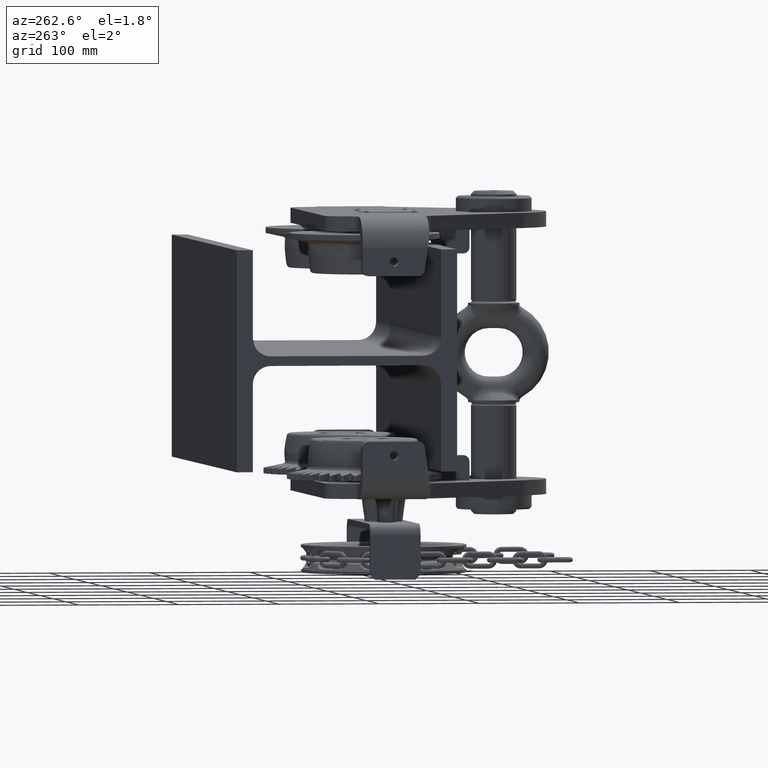
[diagram: clean part render]
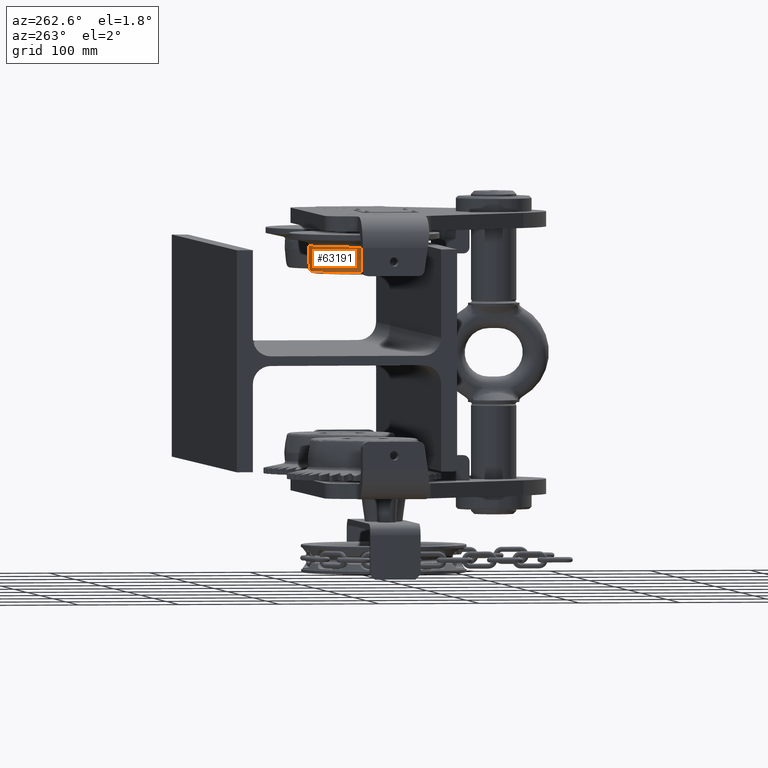
[diagram: same view with one face highlighted and labeled with its STEP entity id]
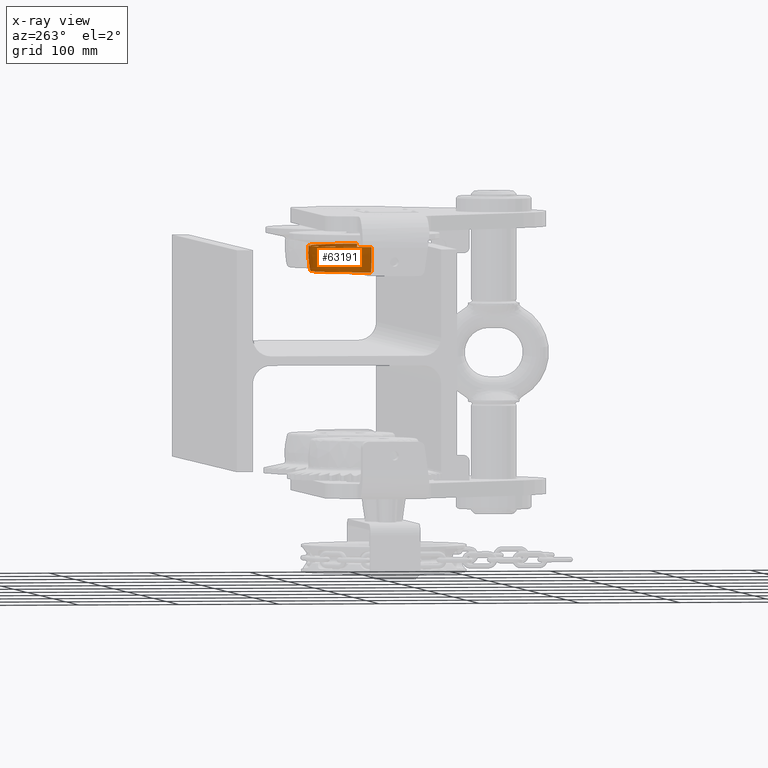
[diagram: x-ray of the same camera — body ghosted, the highlighted face saturated]
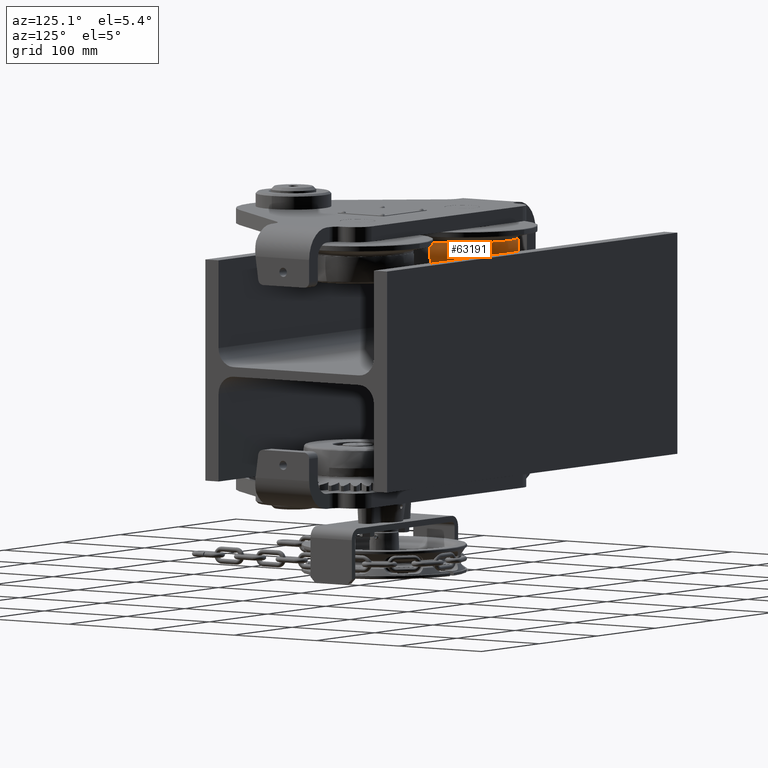
[diagram: same view with one face highlighted and labeled with its STEP entity id]
A machine part, auxiliary view. The second image highlights one B-rep face of the part: STEP entity #63191.
The next image is the same camera in x-ray: the body ghosted, the highlighted face saturated — about 6% of this face is hidden behind the body in this view.
A second angle (auxiliary view) of the same face is appended — the face is thin or edge-on in the first view.
In plain terms, the highlighted spherical surface has radius 56 mm.
Its self-contained STEP definition (entity closure, byte-faithful):
#5 = CIRCLE ( 'NONE', #113506, 55.39255850413274400 ) ;
#1073 = SPHERICAL_SURFACE ( 'NONE', #93911, 56.00000000000000700 ) ;
#1560 = AXIS2_PLACEMENT_3D ( 'NONE', #94384, #103285, #13908 ) ;
#4450 = AXIS2_PLACEMENT_3D ( 'NONE', #111683, #113215, #31867 ) ;
#4493 = ORIENTED_EDGE ( 'NONE', *, *, #40906, .T. ) ;
#7112 = CARTESIAN_POINT ( 'NONE',  ( -90.00000000000002800, -37.99999999999951000, 109.2258411342703100 ) ) ;
#8838 = EDGE_CURVE ( 'NONE', #58349, #49781, #53824, .T. ) ;
#9989 = EDGE_CURVE ( 'NONE', #73937, #58349, #32453, .T. ) ;
#11673 = CARTESIAN_POINT ( 'NONE',  ( -90.00000000000002800, -37.99999999999951000, 84.09433962264273500 ) ) ;
#12016 = DIRECTION ( 'NONE',  ( 1.000000000000000000, -3.717264591378871700E-016, 0.0000000000000000000 ) ) ;
#13301 = CIRCLE ( 'NONE', #4450, 55.39255850413274400 ) ;
#13908 = DIRECTION ( 'NONE',  ( -1.000000000000000000, 2.478176394252581600E-016, 0.0000000000000000000 ) ) ;
#18358 = CARTESIAN_POINT ( 'NONE',  ( -145.3925585041327500, -37.99999999999949600, 109.2258411342703100 ) ) ;
#18678 = VERTEX_POINT ( 'NONE', #102126 ) ;
#22401 = EDGE_CURVE ( 'NONE', #18678, #73937, #108395, .T. ) ;
#26329 = DIRECTION ( 'NONE',  ( 2.599457240876005600E-016, 1.000000000000000000, 0.0000000000000000000 ) ) ;
#29734 = EDGE_CURVE ( 'NONE', #49781, #105750, #5, .T. ) ;
#30043 = ORIENTED_EDGE ( 'NONE', *, *, #8838, .T. ) ;
#30747 = ORIENTED_EDGE ( 'NONE', *, *, #9989, .T. ) ;
#31867 = DIRECTION ( 'NONE',  ( -2.505352376308644300E-016, -1.000000000000000000, 0.0000000000000000000 ) ) ;
#32453 = CIRCLE ( 'NONE', #76243, 53.38725172927908600 ) ;
#38386 = DIRECTION ( 'NONE',  ( 4.336808689942012900E-019, -1.734723475976806700E-018, 1.000000000000000000 ) ) ;
#40906 = EDGE_CURVE ( 'NONE', #105750, #69057, #13301, .T. ) ;
#42856 = ORIENTED_EDGE ( 'NONE', *, *, #100618, .F. ) ;
#45132 = AXIS2_PLACEMENT_3D ( 'NONE', #78188, #96013, #26329 ) ;
#47720 = DIRECTION ( 'NONE',  ( -4.000204360710243800E-016, -1.000000000000000000, -1.734723475976806700E-018 ) ) ;
#49317 = CARTESIAN_POINT ( 'NONE',  ( -90.00000000000002800, -37.99999999999951000, 101.0000000000011900 ) ) ;
#49781 = VERTEX_POINT ( 'NONE', #18358 ) ;
#53824 = CIRCLE ( 'NONE', #1560, 55.99999999999999300 ) ;
#54777 = CARTESIAN_POINT ( 'NONE',  ( -90.00000000000001400, 15.38725172927958000, 84.09433962264273500 ) ) ;
#55216 = CARTESIAN_POINT ( 'NONE',  ( -143.3872517292791100, -37.99999999999949600, 84.09433962264273500 ) ) ;
#58031 = FACE_OUTER_BOUND ( 'NONE', #69302, .T. ) ;
#58204 = DIRECTION ( 'NONE',  ( -1.000000000000000000, 2.478176394252580600E-016, 0.0000000000000000000 ) ) ;
#58349 = VERTEX_POINT ( 'NONE', #55216 ) ;
#59977 = DIRECTION ( 'NONE',  ( -2.505352376308644300E-016, -1.000000000000000000, 0.0000000000000000000 ) ) ;
#63191 = ADVANCED_FACE ( 'NONE', ( #58031 ), #1073, .T. ) ;
#64280 = ORIENTED_EDGE ( 'NONE', *, *, #22401, .T. ) ;
#64509 = DIRECTION ( 'NONE',  ( 2.599457240876005600E-016, 1.000000000000000000, 0.0000000000000000000 ) ) ;
#66712 = AXIS2_PLACEMENT_3D ( 'NONE', #74246, #47720, #12016 ) ;
#69057 = VERTEX_POINT ( 'NONE', #95838 ) ;
#69302 = EDGE_LOOP ( 'NONE', ( #42856, #64280, #30747, #30043, #93919, #4493 ) ) ;
#73937 = VERTEX_POINT ( 'NONE', #54777 ) ;
#74246 = CARTESIAN_POINT ( 'NONE',  ( -90.00000000000002800, -37.99999999999951000, 101.0000000000011900 ) ) ;
#76243 = AXIS2_PLACEMENT_3D ( 'NONE', #11673, #38386, #64509 ) ;
#76399 = CIRCLE ( 'NONE', #66712, 56.00000000000000700 ) ;
#78188 = CARTESIAN_POINT ( 'NONE',  ( -90.00000000000002800, -37.99999999999951000, 84.09433962264273500 ) ) ;
#79401 = CARTESIAN_POINT ( 'NONE',  ( -90.00000000000000000, 17.39255850413323400, 109.2258411342703100 ) ) ;
#93911 = AXIS2_PLACEMENT_3D ( 'NONE', #49317, #111555, #58204 ) ;
#93919 = ORIENTED_EDGE ( 'NONE', *, *, #29734, .T. ) ;
#94384 = CARTESIAN_POINT ( 'NONE',  ( -90.00000000000002800, -37.99999999999951000, 101.0000000000011900 ) ) ;
#95838 = CARTESIAN_POINT ( 'NONE',  ( -34.60744149586727800, -37.99999999999952400, 109.2258411342703100 ) ) ;
#96013 = DIRECTION ( 'NONE',  ( 4.336808689942012900E-019, -1.734723475976806700E-018, 1.000000000000000000 ) ) ;
#100618 = EDGE_CURVE ( 'NONE', #18678, #69057, #76399, .T. ) ;
#102126 = CARTESIAN_POINT ( 'NONE',  ( -36.61274827072094200, -37.99999999999952400, 84.09433962264273500 ) ) ;
#103285 = DIRECTION ( 'NONE',  ( 2.775557561562890400E-016, 1.000000000000000000, 1.734723475976806700E-018 ) ) ;
#105750 = VERTEX_POINT ( 'NONE', #79401 ) ;
#108395 = CIRCLE ( 'NONE', #45132, 53.38725172927908600 ) ;
#111555 = DIRECTION ( 'NONE',  ( -2.478176394252580600E-016, -1.000000000000000000, -1.734723475976806700E-018 ) ) ;
#111683 = CARTESIAN_POINT ( 'NONE',  ( -90.00000000000002800, -37.99999999999951000, 109.2258411342703100 ) ) ;
#112526 = DIRECTION ( 'NONE',  ( -4.336808689942012900E-019, 1.734723475976806700E-018, -1.000000000000000000 ) ) ;
#113215 = DIRECTION ( 'NONE',  ( -4.336808689942012900E-019, 1.734723475976806700E-018, -1.000000000000000000 ) ) ;
#113506 = AXIS2_PLACEMENT_3D ( 'NONE', #7112, #112526, #59977 ) ;